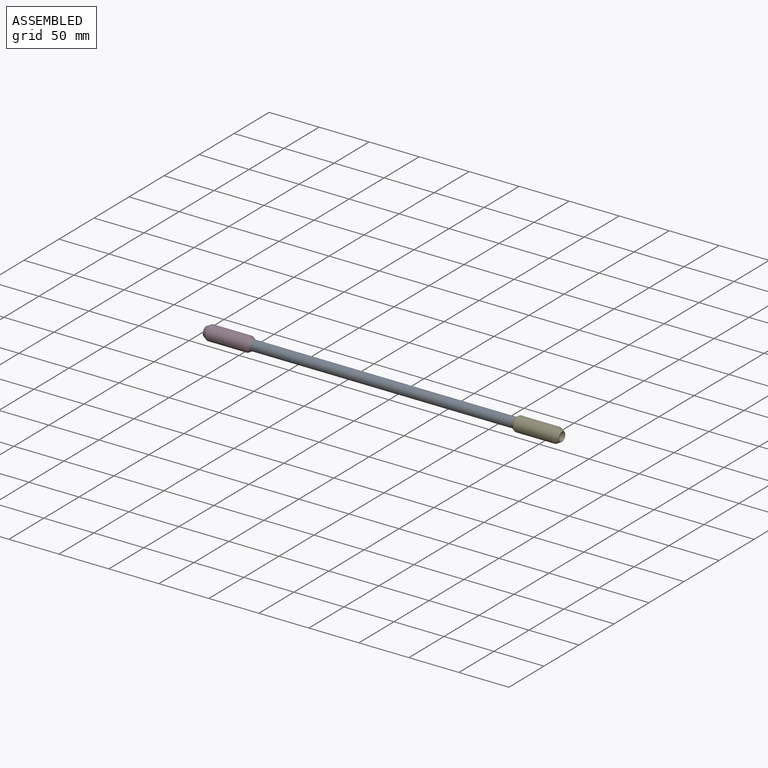
[diagram: assembled view]
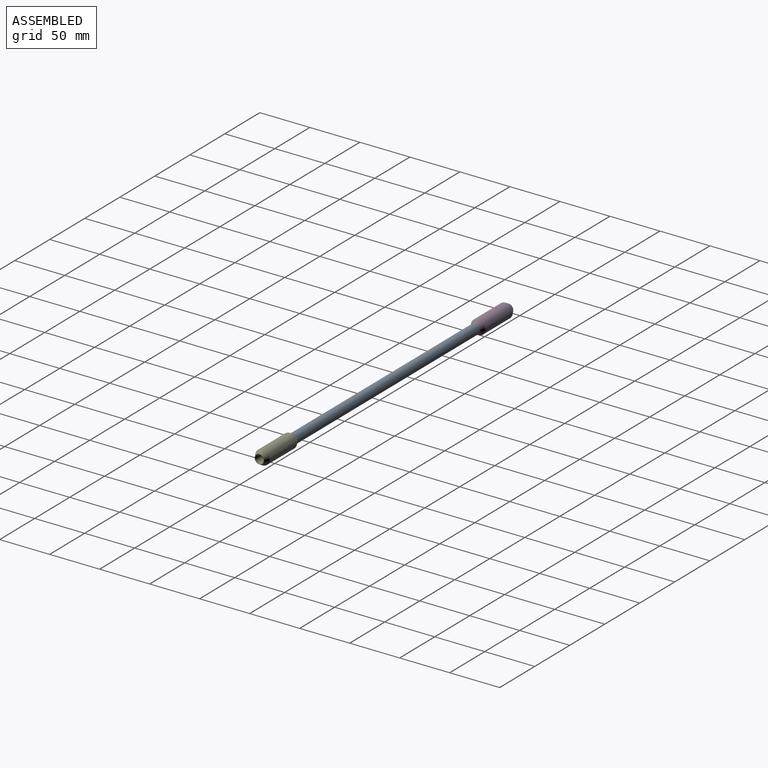
[diagram: assembled view, second angle]
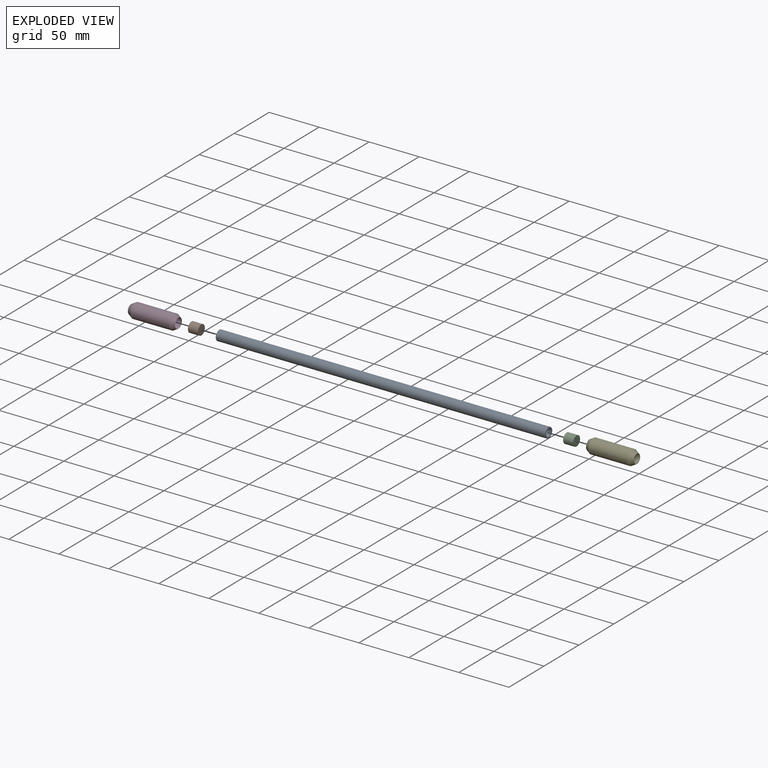
[diagram: exploded view]
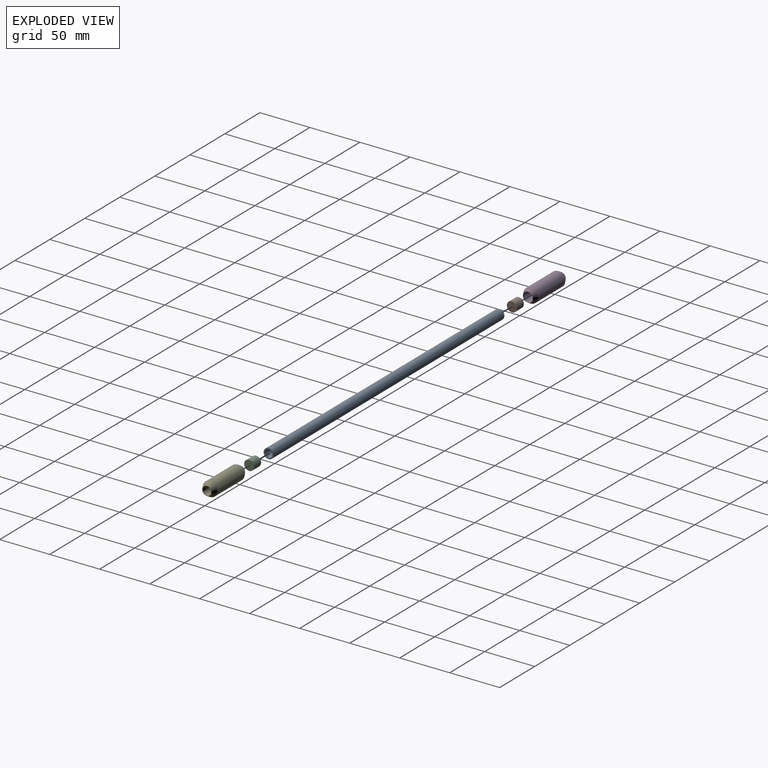
[diagram: exploded view, second angle]
ASSEMBLY  parts=5 mates=4
PART A: 4 faces, bbox 329.5x10x10 mm
  f0: cylinder r=3.8mm len=329.48mm, axis (1,0,0), area 7866.6mm2, adj f2,f3
  f1: cylinder r=5mm len=329.48mm, axis (1,0,0), area 10350.8mm2, adj f2,f3
  f2: plane 10x10mm, normal (-1,0,0), area 33.2mm2, adj f0,f1
  f3: plane 10x10mm, normal (1,0,0), area 33.2mm2, adj f0,f1
PART B: 3 faces, bbox 10x10x10 mm
  f0: cylinder r=5mm len=10mm, axis (1,0,0), area 314.2mm2, adj f1,f2
  f1: plane 10x10mm, normal (-1,0,0), area 78.5mm2, adj f0
  f2: plane 10x10mm, normal (1,0,0), area 78.5mm2, adj f0
PART C: same geometry as B
PART D: 7 faces, bbox 47.4x14.5x14.5 mm
  f0: plane 9.33x9.33mm, normal (1,0,0), area 9.7mm2, adj f1,f5
  f1: sphere r=4.76mm, area 82.7mm2, adj f0
  f2: plane 10x10mm, normal (-1,0,0), area 78.5mm2, adj f3
  f3: cylinder r=5mm len=44.16mm, axis (1,0,0), area 1387.2mm2, adj f2,f6
  f4: cylinder r=7.26mm len=39mm, axis (1,0,0), area 1779.6mm2, adj f5,f6
  f5: cone r=4.66mm half-angle=30deg, axis (-1,0,0), area 194.7mm2, adj f0,f4
  f6: cone r=7.26mm half-angle=30deg, axis (1,0,0), area 174.3mm2, adj f3,f4
PART E: same geometry as D
PLACE A t=(-180.62,50.53,93.63)mm
PLACE B t=(-545.09,50.53,93.63)mm
PLACE C rot(axis=(0,1,0),180deg) t=(-365.62,50.53,93.63)mm
PLACE D rot(axis=(0,1,0),180deg) t=(-635.36,50.53,93.63)mm
PLACE E t=(-275.36,50.53,93.63)mm
MATE fastened B.f0 <-> A.f0  axis (1,0,0) through (-620.09,50.53,93.63)mm
MATE fastened E.f3 <-> C.f0  axis (-1,0,0) through (-280.62,50.53,93.63)mm
MATE fastened C.f0 <-> A.f0  axis (-1,0,0) through (-290.62,50.53,93.63)mm
MATE fastened D.f3 <-> B.f0  axis (1,0,0) through (-630.09,50.53,93.63)mm
